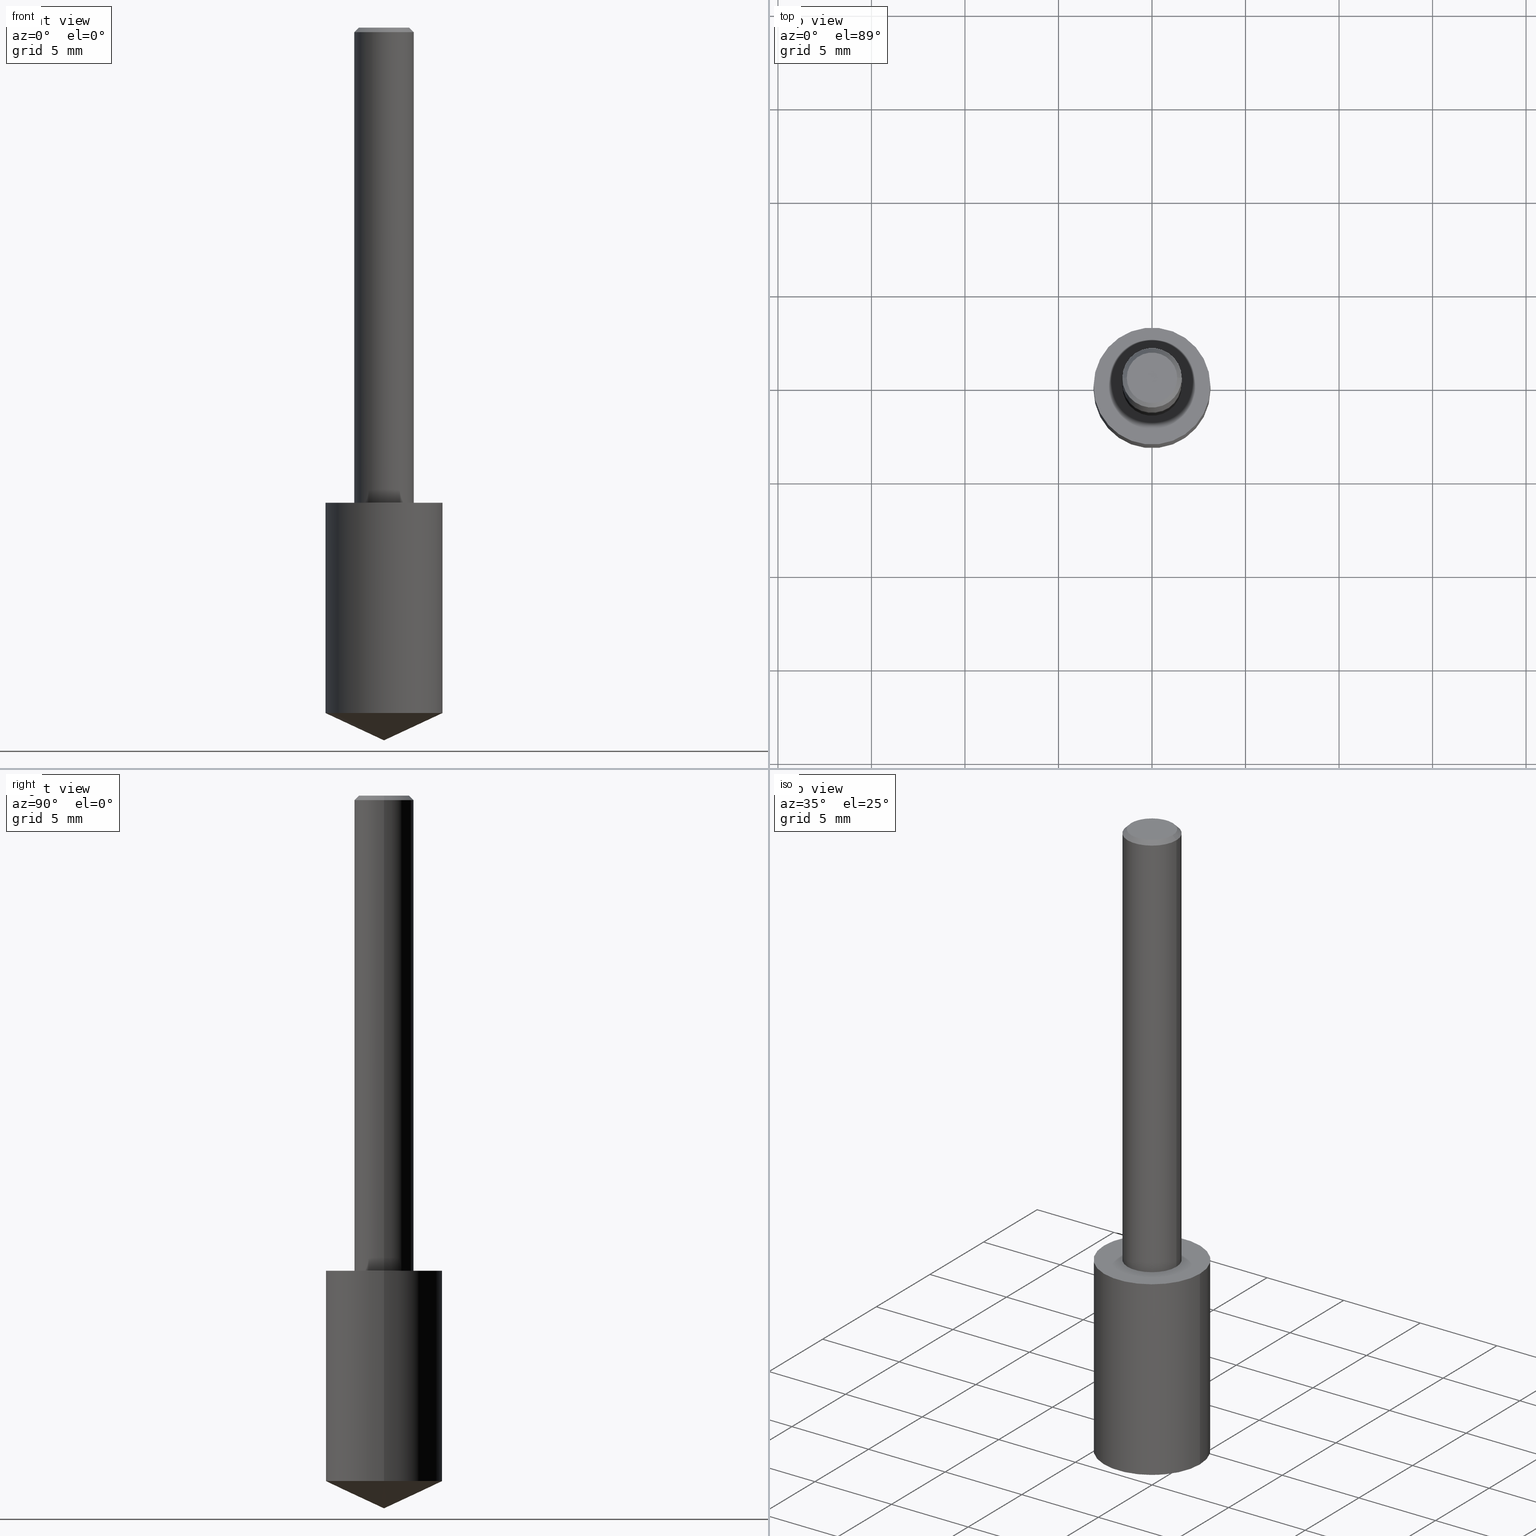
[diagram: canonical four-view strip — front | top / right | iso, engineering-drawing reading convention]
A machine part, canonical four-view strip (front | top / right | iso — engineering-drawing reading convention). The complete STEP part file that produces these views, byte-faithful:
ISO-10303-21;
HEADER;
FILE_DESCRIPTION (( 'STEP AP203' ),
    '1' );
FILE_NAME ('06171.STEP',
    '2024-04-30T18:32:50',
    ( '' ),
    ( '' ),
    'SwSTEP 2.0',
    'SolidWorks 2023',
    '' );
FILE_SCHEMA (( 'CONFIG_CONTROL_DESIGN' ));
ENDSEC;

DATA;
#1 = APPROVAL ( #323, 'UNSPECIFIED' ) ;
#2 = ORIENTED_EDGE ( 'NONE', *, *, #279, .F. ) ;
#3 = CARTESIAN_POINT ( 'NONE',  ( -9.261009624683002666E-28, 1.322226732217803884E-13, 37.87007874015748143 ) ) ;
#4 = CIRCLE ( 'NONE', #196, 0.05312499999999999861 ) ;
#5 = ORIENTED_EDGE ( 'NONE', *, *, #28, .F. ) ;
#6 = COORDINATED_UNIVERSAL_TIME_OFFSET ( 5, 0, .BEHIND. ) ;
#7 = ADVANCED_FACE ( 'NONE', ( #118 ), #89, .T. ) ;
#8 = DATE_AND_TIME ( #254, #154 ) ;
#9 = CARTESIAN_POINT ( 'NONE',  ( -7.487088864773345706E-50, 1.068957861474247695E-35, 3.061616997868395197E-21 ) ) ;
#10 = AXIS2_PLACEMENT_3D ( 'NONE', #170, #66, #91 ) ;
#11 = DIRECTION ( 'NONE',  ( -2.445468806185136597E-29, 3.491481338843145583E-15, 1.000000000000000000 ) ) ;
#12 = DATE_AND_TIME ( #191, #211 ) ;
#13 = DIRECTION ( 'NONE',  ( 1.000000000000000000, -6.982962677686263555E-15, 0.000000000000000000 ) ) ;
#14 = EDGE_CURVE ( 'NONE', #75, #244, #72, .T. ) ;
#15 = CARTESIAN_POINT ( 'NONE',  ( -3.743544432386672853E-50, 5.344789307371238476E-36, 1.530808498934197599E-21 ) ) ;
#16 = EDGE_CURVE ( 'NONE', #285, #137, #210, .T. ) ;
#17 = SECURITY_CLASSIFICATION ( '', '', #138 ) ;
#18 = LINE ( 'NONE', #176, #77 ) ;
#19 = CARTESIAN_POINT ( 'NONE',  ( 0.000000000000000000, 0.000000000000000000, 0.000000000000000000 ) ) ;
#20 = CARTESIAN_POINT ( 'NONE',  ( 3.668203209277704895E-29, -5.237222008264718177E-15, -1.500000000000000222 ) ) ;
#21 = LINE ( 'NONE', #228, #95 ) ;
#22 = CIRCLE ( 'NONE', #136, 0.1230500000000000066 ) ;
#23 = ORIENTED_EDGE ( 'NONE', *, *, #16, .T. ) ;
#24 = CC_DESIGN_APPROVAL ( #41, ( #79 ) ) ;
#25 = EDGE_LOOP ( 'NONE', ( #52, #54, #319 ) ) ;
#26 = CARTESIAN_POINT ( 'NONE',  ( -0.06250000000000012490, -1.318017778347335489E-15, -1.000000000000000222 ) ) ;
#27 = LINE ( 'NONE', #241, #48 ) ;
#28 = EDGE_CURVE ( 'NONE', #75, #137, #221, .T. ) ;
#29 =( NAMED_UNIT ( * ) SI_UNIT ( $, .STERADIAN. ) SOLID_ANGLE_UNIT ( ) );
#30 = ORIENTED_EDGE ( 'NONE', *, *, #279, .T. ) ;
#31 = DIRECTION ( 'NONE',  ( 1.000000000000000000, 0.000000000000000000, 0.000000000000000000 ) ) ;
#32 = EDGE_LOOP ( 'NONE', ( #297, #78, #188, #2 ) ) ;
#33 = VECTOR ( 'NONE', #256, 39.37007874015748143 ) ;
#34 = CALENDAR_DATE ( 2024, 30, 4 ) ;
#35 = ORIENTED_EDGE ( 'NONE', *, *, #238, .F. ) ;
#36 = APPROVAL_STATUS ( 'not_yet_approved' ) ;
#37 = DIRECTION ( 'NONE',  ( -2.445468806185136597E-29, 3.491481338843145583E-15, 1.000000000000000000 ) ) ;
#38 = LOCAL_TIME ( 14, 32, 50.00000000000000000, #55 ) ;
#39 = PERSON_AND_ORGANIZATION_ROLE ( 'design_supplier' ) ;
#40 = DIRECTION ( 'NONE',  ( 2.438088387897960049E-29, -3.491481338843145188E-15, -1.000000000000000000 ) ) ;
#41 = APPROVAL ( #36, 'UNSPECIFIED' ) ;
#42 = CARTESIAN_POINT ( 'NONE',  ( 0.1230500000000000066, -4.350734896332441588E-15, -1.000000000000000222 ) ) ;
#43 = DIRECTION ( 'NONE',  ( -2.445468806185136597E-29, 3.491481338843145583E-15, 1.000000000000000000 ) ) ;
#44 = VECTOR ( 'NONE', #84, 39.37007874015748143 ) ;
#45 = DIRECTION ( 'NONE',  ( -2.438088387897960049E-29, 3.491481338843145188E-15, 1.000000000000000000 ) ) ;
#46 = DIRECTION ( 'NONE',  ( 1.000000000000000000, -6.982962677686266711E-15, 0.000000000000000000 ) ) ;
#47 = EDGE_CURVE ( 'NONE', #130, #132, #192, .T. ) ;
#48 = VECTOR ( 'NONE', #209, 39.37007874015748143 ) ;
#49 = CARTESIAN_POINT ( 'NONE',  ( 3.527884269887395579E-29, -5.036883751187626177E-15, -1.442620842664027681 ) ) ;
#50 = FACE_OUTER_BOUND ( 'NONE', #247, .T. ) ;
#51 = AXIS2_PLACEMENT_3D ( 'NONE', #299, #224, #219 ) ;
#52 = ORIENTED_EDGE ( 'NONE', *, *, #216, .F. ) ;
#53 = ADVANCED_FACE ( 'NONE', ( #60 ), #147, .F. ) ;
#54 = ORIENTED_EDGE ( 'NONE', *, *, #282, .T. ) ;
#55 = COORDINATED_UNIVERSAL_TIME_OFFSET ( 5, 0, .BEHIND. ) ;
#56 = ORIENTED_EDGE ( 'NONE', *, *, #230, .F. ) ;
#57 = CONICAL_SURFACE ( 'NONE', #338, 84.42940631927417883, 1.134464013796315118 ) ;
#58 = DIRECTION ( 'NONE',  ( 1.000000000000000000, -6.982962677686266711E-15, 4.876176628004948512E-29 ) ) ;
#59 = PERSON_AND_ORGANIZATION ( #120, #330 ) ;
#60 = FACE_OUTER_BOUND ( 'NONE', #237, .T. ) ;
#61 = APPLICATION_CONTEXT ( 'configuration controlled 3d designs of mechanical parts and assemblies' ) ;
#62 = CARTESIAN_POINT ( 'NONE',  ( 0.05312499999999999861, -4.129888592719939842E-16, 3.061617000609493422E-21 ) ) ;
#63 = EDGE_CURVE ( 'NONE', #212, #103, #204, .T. ) ;
#64 = CIRCLE ( 'NONE', #197, 0.06250000000000012490 ) ;
#65 = APPROVAL_ROLE ( '' ) ;
#66 = DIRECTION ( 'NONE',  ( -2.445468806185136597E-29, 3.491481338843145583E-15, 1.000000000000000000 ) ) ;
#67 = EDGE_CURVE ( 'NONE', #163, #132, #276, .T. ) ;
#68 = AXIS2_PLACEMENT_3D ( 'NONE', #122, #151, #231 ) ;
#69 = CC_DESIGN_PERSON_AND_ORGANIZATION_ASSIGNMENT ( #146, #39, ( #218 ) ) ;
#70 = FACE_OUTER_BOUND ( 'NONE', #208, .T. ) ;
#71 = CARTESIAN_POINT ( 'NONE',  ( -0.06250000000000000000, -1.318017778347336672E-15, -0.009375000000000060368 ) ) ;
#72 = CIRCLE ( 'NONE', #322, 0.05312499999999999861 ) ;
#73 = DIRECTION ( 'NONE',  ( -2.445468806185136597E-29, 3.491481338843145583E-15, 1.000000000000000000 ) ) ;
#74 = PERSON_AND_ORGANIZATION ( #120, #330 ) ;
#75 = VERTEX_POINT ( 'NONE', #62 ) ;
#76 = ORIENTED_EDGE ( 'NONE', *, *, #128, .T. ) ;
#77 = VECTOR ( 'NONE', #178, 39.37007874015748143 ) ;
#78 = ORIENTED_EDGE ( 'NONE', *, *, #270, .T. ) ;
#79 = PRODUCT_DEFINITION ( 'UNKNOWN', '', #218, #314 ) ;
#80 = FACE_OUTER_BOUND ( 'NONE', #109, .T. ) ;
#81 = DIRECTION ( 'NONE',  ( 1.000000000000000000, -6.982962677686263555E-15, 0.000000000000000000 ) ) ;
#82 = ORIENTED_EDGE ( 'NONE', *, *, #63, .T. ) ;
#83 = SHAPE_DEFINITION_REPRESENTATION ( #259, #242 ) ;
#84 = DIRECTION ( 'NONE',  ( -2.445468806185136877E-29, 3.491481338843145188E-15, 1.000000000000000000 ) ) ;
#85 = CLOSED_SHELL ( 'NONE', ( #207, #227, #158, #248, #53 ) ) ;
#86 =( GEOMETRIC_REPRESENTATION_CONTEXT ( 3 ) GLOBAL_UNCERTAINTY_ASSIGNED_CONTEXT ( ( #159 ) ) GLOBAL_UNIT_ASSIGNED_CONTEXT ( ( #296, #160, #29 ) ) REPRESENTATION_CONTEXT ( 'NONE', 'WORKASPACE' ) );
#87 =( LENGTH_UNIT ( ) NAMED_UNIT ( * ) SI_UNIT ( $, .METRE. ) );
#88 = DATE_TIME_ROLE ( 'creation_date' ) ;
#89 = CYLINDRICAL_SURFACE ( 'NONE', #10, 0.06250000000000006939 ) ;
#90 = APPROVAL_STATUS ( 'not_yet_approved' ) ;
#91 = DIRECTION ( 'NONE',  ( 1.000000000000000000, -6.982962677686266711E-15, 4.876176775795935793E-29 ) ) ;
#92 = VECTOR ( 'NONE', #195, 39.37007874015748143 ) ;
#93 = DIRECTION ( 'NONE',  ( -2.445468806185136597E-29, 3.491481338843145583E-15, 1.000000000000000000 ) ) ;
#94 = APPROVAL ( #90, 'UNSPECIFIED' ) ;
#95 = VECTOR ( 'NONE', #199, 39.37007874015748143 ) ;
#96 = APPROVAL_PERSON_ORGANIZATION ( #74, #41, #250 ) ;
#97 = DIRECTION ( 'NONE',  ( 1.000000000000000000, -6.982962677686266711E-15, 0.000000000000000000 ) ) ;
#98 = CARTESIAN_POINT ( 'NONE',  ( 3.668203209277704895E-29, -5.237222008264718177E-15, -1.500000000000000222 ) ) ;
#99 = DIMENSIONAL_EXPONENTS ( 1.000000000000000000, 0.000000000000000000, 0.000000000000000000, 0.000000000000000000, 0.000000000000000000, 0.000000000000000000, 0.000000000000000000 ) ;
#100 = AXIS2_PLACEMENT_3D ( 'NONE', #284, #294, #185 ) ;
#101 = DIRECTION ( 'NONE',  ( -0.9063077870366502697, 7.915267918739016209E-15, 0.4226182617406986641 ) ) ;
#102 = PRODUCT ( '06171', '06171', '', ( #135 ) ) ;
#103 = VERTEX_POINT ( 'NONE', #275 ) ;
#104 = DIRECTION ( 'NONE',  ( -2.445468806185136597E-29, 3.491481338843145583E-15, 1.000000000000000000 ) ) ;
#105 = ADVANCED_FACE ( 'NONE', ( #70 ), #304, .F. ) ;
#106 = ORIENTED_EDGE ( 'NONE', *, *, #47, .F. ) ;
#107 = AXIS2_PLACEMENT_3D ( 'NONE', #3, #110, #286 ) ;
#108 = APPROVAL_PERSON_ORGANIZATION ( #222, #1, #194 ) ;
#109 = EDGE_LOOP ( 'NONE', ( #112, #165, #268, #157 ) ) ;
#110 = DIRECTION ( 'NONE',  ( -2.445468806185136597E-29, 3.491481338843145583E-15, 1.000000000000000000 ) ) ;
#111 = COORDINATED_UNIVERSAL_TIME_OFFSET ( 5, 0, .BEHIND. ) ;
#112 = ORIENTED_EDGE ( 'NONE', *, *, #128, .F. ) ;
#113 = COORDINATED_UNIVERSAL_TIME_OFFSET ( 5, 0, .BEHIND. ) ;
#114 = DIRECTION ( 'NONE',  ( 1.000000000000000000, -6.982962677686263555E-15, 0.000000000000000000 ) ) ;
#115 = DIRECTION ( 'NONE',  ( 1.000000000000000000, -6.982962677686268288E-15, 0.000000000000000000 ) ) ;
#116 = APPROVAL_DATE_TIME ( #12, #41 ) ;
#117 = APPROVAL_DATE_TIME ( #8, #94 ) ;
#118 = FACE_OUTER_BOUND ( 'NONE', #32, .T. ) ;
#119 = AXIS2_PLACEMENT_3D ( 'NONE', #15, #177, #260 ) ;
#120 = PERSON ( 'UNSPECIFIED', 'UNSPECIFIED', 'UNSPECIFIED', ('UNSPECIFIED'), ('UNSPECIFIED'), ('UNSPECIFIED') ) ;
#121 = CARTESIAN_POINT ( 'NONE',  ( -0.1230500000000000066, -2.617158502490343145E-15, -1.000000000000000222 ) ) ;
#122 = CARTESIAN_POINT ( 'NONE',  ( 2.292627005798580186E-31, -3.273263755165470184E-17, -0.009375000000000060368 ) ) ;
#123 = AXIS2_PLACEMENT_3D ( 'NONE', #152, #125, #97 ) ;
#124 = CARTESIAN_POINT ( 'NONE',  ( -9.261009624683002666E-28, 1.322226732217803884E-13, 37.87007874015748143 ) ) ;
#125 = DIRECTION ( 'NONE',  ( -2.445468806185136597E-29, 3.491481338843145583E-15, 1.000000000000000000 ) ) ;
#126 = DIRECTION ( 'NONE',  ( 1.000000000000000000, -6.982962677686266711E-15, 4.876176775795935793E-29 ) ) ;
#127 = DIRECTION ( 'NONE',  ( 0.000000000000000000, 0.000000000000000000, 1.000000000000000000 ) ) ;
#128 = EDGE_CURVE ( 'NONE', #162, #163, #148, .T. ) ;
#129 = CLOSED_SHELL ( 'NONE', ( #171, #7, #105, #145, #265, #168 ) ) ;
#130 = VERTEX_POINT ( 'NONE', #226 ) ;
#131 = CARTESIAN_POINT ( 'NONE',  ( 2.445468806185137438E-29, -3.491481338843146371E-15, -1.000000000000000222 ) ) ;
#132 = VERTEX_POINT ( 'NONE', #155 ) ;
#133 = DIRECTION ( 'NONE',  ( 1.000000000000000000, -6.982962677686264344E-15, 0.000000000000000000 ) ) ;
#134 = ORIENTED_EDGE ( 'NONE', *, *, #14, .F. ) ;
#135 = MECHANICAL_CONTEXT ( 'NONE', #61, 'mechanical' ) ;
#136 = AXIS2_PLACEMENT_3D ( 'NONE', #232, #179, #13 ) ;
#137 = VERTEX_POINT ( 'NONE', #257 ) ;
#138 = SECURITY_CLASSIFICATION_LEVEL ( 'unclassified' ) ;
#139 = EDGE_LOOP ( 'NONE', ( #134, #328, #240, #245 ) ) ;
#140 = DIRECTION ( 'NONE',  ( -2.445468806185136597E-29, 3.491481338843145583E-15, 1.000000000000000000 ) ) ;
#141 = PERSON_AND_ORGANIZATION_ROLE ( 'classification_officer' ) ;
#142 = CARTESIAN_POINT ( 'NONE',  ( 2.445468806185136877E-29, -3.491481338843145977E-15, -1.000000000000000222 ) ) ;
#143 = CONICAL_SURFACE ( 'NONE', #68, 0.06250000000000000000, 0.7853981633974452814 ) ;
#144 = CALENDAR_DATE ( 2024, 30, 4 ) ;
#145 = ADVANCED_FACE ( 'NONE', ( #263 ), #332, .T. ) ;
#146 = PERSON_AND_ORGANIZATION ( #120, #330 ) ;
#147 = PLANE ( 'NONE',  #225 ) ;
#148 = LINE ( 'NONE', #121, #33 ) ;
#149 = PLANE ( 'NONE',  #119 ) ;
#150 = EDGE_CURVE ( 'NONE', #162, #130, #22, .T. ) ;
#151 = DIRECTION ( 'NONE',  ( 2.445468806185136597E-29, -3.491481338843145583E-15, -1.000000000000000000 ) ) ;
#152 = CARTESIAN_POINT ( 'NONE',  ( 2.292627005798580186E-31, -3.273263755165470184E-17, -0.009375000000000060368 ) ) ;
#153 = AXIS2_PLACEMENT_3D ( 'NONE', #288, #189, #161 ) ;
#154 = LOCAL_TIME ( 14, 32, 50.00000000000000000, #217 ) ;
#155 = CARTESIAN_POINT ( 'NONE',  ( 0.1230500000000000066, -4.350734896332440799E-15, -1.000000000000000222 ) ) ;
#156 = LINE ( 'NONE', #20, #309 ) ;
#157 = ORIENTED_EDGE ( 'NONE', *, *, #67, .F. ) ;
#158 = ADVANCED_FACE ( 'NONE', ( #277 ), #57, .T. ) ;
#159 = UNCERTAINTY_MEASURE_WITH_UNIT (LENGTH_MEASURE( 1.000000000000000082E-05 ), #296, 'distance_accuracy_value', 'NONE');
#160 =( NAMED_UNIT ( * ) PLANE_ANGLE_UNIT ( ) SI_UNIT ( $, .RADIAN. ) );
#161 = DIRECTION ( 'NONE',  ( -1.000000000000000000, 6.982962677686266711E-15, 0.000000000000000000 ) ) ;
#162 = VERTEX_POINT ( 'NONE', #198 ) ;
#163 = VERTEX_POINT ( 'NONE', #278 ) ;
#164 = CIRCLE ( 'NONE', #100, 0.1230500000000000066 ) ;
#165 = ORIENTED_EDGE ( 'NONE', *, *, #150, .T. ) ;
#166 = PERSON_AND_ORGANIZATION_ROLE ( 'creator' ) ;
#167 = DIRECTION ( 'NONE',  ( -2.445468806185136597E-29, 3.491481338843145583E-15, 1.000000000000000000 ) ) ;
#168 = ADVANCED_FACE ( 'NONE', ( #308 ), #149, .F. ) ;
#169 = PERSON_AND_ORGANIZATION ( #120, #330 ) ;
#170 = CARTESIAN_POINT ( 'NONE',  ( 0.000000000000000000, 0.000000000000000000, 0.000000000000000000 ) ) ;
#171 = ADVANCED_FACE ( 'NONE', ( #336 ), #143, .T. ) ;
#172 = DATE_AND_TIME ( #321, #229 ) ;
#173 = CARTESIAN_POINT ( 'NONE',  ( 2.445468806185137438E-29, -3.491481338843146371E-15, -1.000000000000000222 ) ) ;
#174 = AXIS2_PLACEMENT_3D ( 'NONE', #142, #11, #114 ) ;
#175 = CYLINDRICAL_SURFACE ( 'NONE', #287, 0.1230500000000000066 ) ;
#176 = CARTESIAN_POINT ( 'NONE',  ( -0.06250000000000000000, 4.037025298037369984E-16, -0.009375000000000060368 ) ) ;
#177 = DIRECTION ( 'NONE',  ( 2.438088387897960049E-29, -3.491481338843145188E-15, -1.000000000000000000 ) ) ;
#178 = DIRECTION ( 'NONE',  ( -0.7071067811865453523, 2.468850131082234184E-15, -0.7071067811865496822 ) ) ;
#179 = DIRECTION ( 'NONE',  ( -2.445468806185136597E-29, 3.491481338843145583E-15, 1.000000000000000000 ) ) ;
#180 = ORIENTED_EDGE ( 'NONE', *, *, #67, .T. ) ;
#181 = ORIENTED_EDGE ( 'NONE', *, *, #300, .T. ) ;
#182 = VECTOR ( 'NONE', #307, 39.37007874015748143 ) ;
#183 = CC_DESIGN_APPROVAL ( #1, ( #17 ) ) ;
#184 = ORIENTED_EDGE ( 'NONE', *, *, #292, .T. ) ;
#185 = DIRECTION ( 'NONE',  ( 1.000000000000000000, -6.982962677686263555E-15, 0.000000000000000000 ) ) ;
#186 = EDGE_LOOP ( 'NONE', ( #213, #293, #56 ) ) ;
#187 = LENGTH_MEASURE_WITH_UNIT ( LENGTH_MEASURE( 0.02539999999999999897 ), #87 );
#188 = ORIENTED_EDGE ( 'NONE', *, *, #295, .F. ) ;
#189 = DIRECTION ( 'NONE',  ( 2.445468806185136597E-29, -3.491481338843145583E-15, -1.000000000000000000 ) ) ;
#190 = AXIS2_PLACEMENT_3D ( 'NONE', #49, #104, #81 ) ;
#191 = CALENDAR_DATE ( 2024, 30, 4 ) ;
#192 = LINE ( 'NONE', #42, #44 ) ;
#193 = VERTEX_POINT ( 'NONE', #98 ) ;
#194 = APPROVAL_ROLE ( '' ) ;
#195 = DIRECTION ( 'NONE',  ( 0.7071067811865453523, -7.319954787623248157E-15, -0.7071067811865496822 ) ) ;
#196 = AXIS2_PLACEMENT_3D ( 'NONE', #335, #201, #337 ) ;
#197 = AXIS2_PLACEMENT_3D ( 'NONE', #131, #264, #133 ) ;
#198 = CARTESIAN_POINT ( 'NONE',  ( -0.1230500000000000344, -4.162560914834822950E-15, -1.442620842664027681 ) ) ;
#199 = DIRECTION ( 'NONE',  ( -2.445468806185136877E-29, 3.491481338843145188E-15, 1.000000000000000000 ) ) ;
#200 = CARTESIAN_POINT ( 'NONE',  ( 2.445468806185137438E-29, -3.491481338843146371E-15, -1.000000000000000222 ) ) ;
#201 = DIRECTION ( 'NONE',  ( -2.445468806185136597E-29, 3.491481338843145583E-15, 1.000000000000000000 ) ) ;
#202 = FACE_OUTER_BOUND ( 'NONE', #313, .T. ) ;
#203 = LINE ( 'NONE', #233, #182 ) ;
#204 = CIRCLE ( 'NONE', #269, 0.06250000000000012490 ) ;
#205 = APPLICATION_PROTOCOL_DEFINITION ( 'international standard', 'config_control_design', 1994, #272 ) ;
#206 = ORIENTED_EDGE ( 'NONE', *, *, #220, .T. ) ;
#207 = ADVANCED_FACE ( 'NONE', ( #202 ), #310, .T. ) ;
#208 = EDGE_LOOP ( 'NONE', ( #35, #315 ) ) ;
#209 = DIRECTION ( 'NONE',  ( -2.445468806185136877E-29, 3.491481338843145188E-15, 1.000000000000000000 ) ) ;
#210 = CIRCLE ( 'NONE', #51, 0.06250000000000000000 ) ;
#211 = LOCAL_TIME ( 14, 32, 50.00000000000000000, #111 ) ;
#212 = VERTEX_POINT ( 'NONE', #26 ) ;
#213 = ORIENTED_EDGE ( 'NONE', *, *, #282, .F. ) ;
#214 = DATE_TIME_ROLE ( 'classification_date' ) ;
#215 = ORIENTED_EDGE ( 'NONE', *, *, #14, .T. ) ;
#216 = EDGE_CURVE ( 'NONE', #193, #162, #156, .T. ) ;
#217 = COORDINATED_UNIVERSAL_TIME_OFFSET ( 5, 0, .BEHIND. ) ;
#218 = PRODUCT_DEFINITION_FORMATION_WITH_SPECIFIED_SOURCE ( 'ANY', '', #102, .NOT_KNOWN. ) ;
#219 = DIRECTION ( 'NONE',  ( 1.000000000000000000, -6.982962677686266711E-15, 0.000000000000000000 ) ) ;
#220 = EDGE_CURVE ( 'NONE', #132, #163, #164, .T. ) ;
#221 = LINE ( 'NONE', #301, #92 ) ;
#222 = PERSON_AND_ORGANIZATION ( #120, #330 ) ;
#223 = CC_DESIGN_DATE_AND_TIME_ASSIGNMENT ( #329, #214, ( #17 ) ) ;
#224 = DIRECTION ( 'NONE',  ( -2.445468806185136597E-29, 3.491481338843145583E-15, 1.000000000000000000 ) ) ;
#225 = AXIS2_PLACEMENT_3D ( 'NONE', #303, #40, #326 ) ;
#226 = CARTESIAN_POINT ( 'NONE',  ( 0.1230500000000000344, -5.896137308676920999E-15, -1.442620842664027681 ) ) ;
#227 = ADVANCED_FACE ( 'NONE', ( #281 ), #249, .T. ) ;
#228 = CARTESIAN_POINT ( 'NONE',  ( 0.06250000000000006939, -4.364351673553921624E-16, 3.047610484872463374E-30 ) ) ;
#229 = LOCAL_TIME ( 14, 32, 50.00000000000000000, #6 ) ;
#230 = EDGE_CURVE ( 'NONE', #130, #162, #298, .T. ) ;
#231 = DIRECTION ( 'NONE',  ( -1.000000000000000000, 6.982962677686266711E-15, 0.000000000000000000 ) ) ;
#232 = CARTESIAN_POINT ( 'NONE',  ( 3.527884269887395579E-29, -5.036883751187626177E-15, -1.442620842664027681 ) ) ;
#233 = CARTESIAN_POINT ( 'NONE',  ( 3.668203209277704895E-29, -5.237222008264718177E-15, -1.500000000000000222 ) ) ;
#234 = PERSON_AND_ORGANIZATION_ROLE ( 'design_owner' ) ;
#235 = MANIFOLD_SOLID_BREP ( 'Body-Move/Copy2[1]', #85 ) ;
#236 = AXIS2_PLACEMENT_3D ( 'NONE', #200, #45, #306 ) ;
#237 = EDGE_LOOP ( 'NONE', ( #206, #180 ) ) ;
#238 = EDGE_CURVE ( 'NONE', #103, #212, #64, .T. ) ;
#239 = MANIFOLD_SOLID_BREP ( 'Body-Move/Copy2[2]', #129 ) ;
#240 = ORIENTED_EDGE ( 'NONE', *, *, #295, .T. ) ;
#241 = CARTESIAN_POINT ( 'NONE',  ( -0.06250000000000006939, 4.440892098500631092E-16, -3.074334431409319267E-30 ) ) ;
#242 = ADVANCED_BREP_SHAPE_REPRESENTATION ( '06171', ( #235, #239, #251 ), #86 ) ;
#243 = CC_DESIGN_DATE_AND_TIME_ASSIGNMENT ( #327, #88, ( #79 ) ) ;
#244 = VERTEX_POINT ( 'NONE', #316 ) ;
#245 = ORIENTED_EDGE ( 'NONE', *, *, #292, .F. ) ;
#246 = PERSON_AND_ORGANIZATION ( #120, #330 ) ;
#247 = EDGE_LOOP ( 'NONE', ( #5, #283, #184, #23 ) ) ;
#248 = ADVANCED_FACE ( 'NONE', ( #80 ), #175, .T. ) ;
#249 = CONICAL_SURFACE ( 'NONE', #107, 84.42940631927417883, 1.134464013796315118 ) ;
#250 = APPROVAL_ROLE ( '' ) ;
#251 = AXIS2_PLACEMENT_3D ( 'NONE', #266, #127, #31 ) ;
#252 = DIRECTION ( 'NONE',  ( 1.000000000000000000, -6.982962677686264344E-15, 0.000000000000000000 ) ) ;
#253 = CC_DESIGN_PERSON_AND_ORGANIZATION_ASSIGNMENT ( #246, #141, ( #17 ) ) ;
#254 = CALENDAR_DATE ( 2024, 30, 4 ) ;
#255 = AXIS2_PLACEMENT_3D ( 'NONE', #334, #73, #320 ) ;
#256 = DIRECTION ( 'NONE',  ( -2.445468806185136877E-29, 3.491481338843145188E-15, 1.000000000000000000 ) ) ;
#257 = CARTESIAN_POINT ( 'NONE',  ( 0.06250000000000000000, -4.691678049070463404E-16, -0.009375000000000060368 ) ) ;
#258 = PRODUCT_RELATED_PRODUCT_CATEGORY ( 'detail', '', ( #102 ) ) ;
#259 = PRODUCT_DEFINITION_SHAPE ( 'NONE', 'NONE',  #79 ) ;
#260 = DIRECTION ( 'NONE',  ( -1.000000000000000000, 6.982962677686265922E-15, -4.876176775795935793E-29 ) ) ;
#261 = CC_DESIGN_APPROVAL ( #94, ( #218 ) ) ;
#262 = CC_DESIGN_PERSON_AND_ORGANIZATION_ASSIGNMENT ( #302, #274, ( #218 ) ) ;
#263 = FACE_OUTER_BOUND ( 'NONE', #312, .T. ) ;
#264 = DIRECTION ( 'NONE',  ( -2.445468806185136597E-29, 3.491481338843145583E-15, 1.000000000000000000 ) ) ;
#265 = ADVANCED_FACE ( 'NONE', ( #50 ), #333, .T. ) ;
#266 = CARTESIAN_POINT ( 'NONE',  ( 0.000000000000000000, 0.000000000000000000, 0.000000000000000000 ) ) ;
#267 = EDGE_LOOP ( 'NONE', ( #181, #215 ) ) ;
#268 = ORIENTED_EDGE ( 'NONE', *, *, #47, .T. ) ;
#269 = AXIS2_PLACEMENT_3D ( 'NONE', #331, #37, #252 ) ;
#270 = EDGE_CURVE ( 'NONE', #212, #285, #27, .T. ) ;
#271 = ORIENTED_EDGE ( 'NONE', *, *, #270, .F. ) ;
#272 = APPLICATION_CONTEXT ( 'configuration controlled 3d designs of mechanical parts and assemblies' ) ;
#273 = CIRCLE ( 'NONE', #123, 0.06250000000000000000 ) ;
#274 = PERSON_AND_ORGANIZATION_ROLE ( 'creator' ) ;
#275 = CARTESIAN_POINT ( 'NONE',  ( 0.06250000000000012490, -3.927916506198539224E-15, -1.000000000000000222 ) ) ;
#276 = CIRCLE ( 'NONE', #174, 0.1230500000000000066 ) ;
#277 = FACE_OUTER_BOUND ( 'NONE', #25, .T. ) ;
#278 = CARTESIAN_POINT ( 'NONE',  ( -0.1230500000000000066, -3.389859708662582850E-15, -1.000000000000000222 ) ) ;
#279 = EDGE_CURVE ( 'NONE', #103, #137, #21, .T. ) ;
#280 = CC_DESIGN_SECURITY_CLASSIFICATION ( #17, ( #218 ) ) ;
#281 = FACE_OUTER_BOUND ( 'NONE', #186, .T. ) ;
#282 = EDGE_CURVE ( 'NONE', #193, #130, #203, .T. ) ;
#283 = ORIENTED_EDGE ( 'NONE', *, *, #300, .F. ) ;
#284 = CARTESIAN_POINT ( 'NONE',  ( 2.445468806185136877E-29, -3.491481338843145977E-15, -1.000000000000000222 ) ) ;
#285 = VERTEX_POINT ( 'NONE', #71 ) ;
#286 = DIRECTION ( 'NONE',  ( 1.000000000000000000, -6.982962677686266711E-15, 0.000000000000000000 ) ) ;
#287 = AXIS2_PLACEMENT_3D ( 'NONE', #173, #140, #115 ) ;
#288 = CARTESIAN_POINT ( 'NONE',  ( 2.292627005798580186E-31, -3.273263755165470184E-17, -0.009375000000000060368 ) ) ;
#289 = LOCAL_TIME ( 14, 32, 50.00000000000000000, #113 ) ;
#290 = APPLICATION_PROTOCOL_DEFINITION ( 'international standard', 'config_control_design', 1994, #61 ) ;
#291 = ORIENTED_EDGE ( 'NONE', *, *, #220, .F. ) ;
#292 = EDGE_CURVE ( 'NONE', #244, #285, #18, .T. ) ;
#293 = ORIENTED_EDGE ( 'NONE', *, *, #216, .T. ) ;
#294 = DIRECTION ( 'NONE',  ( -2.445468806185136597E-29, 3.491481338843145583E-15, 1.000000000000000000 ) ) ;
#295 = EDGE_CURVE ( 'NONE', #137, #285, #273, .T. ) ;
#296 =( CONVERSION_BASED_UNIT ( 'INCH', #187 ) LENGTH_UNIT ( ) NAMED_UNIT ( #99 ) );
#297 = ORIENTED_EDGE ( 'NONE', *, *, #238, .T. ) ;
#298 = CIRCLE ( 'NONE', #190, 0.1230500000000000066 ) ;
#299 = CARTESIAN_POINT ( 'NONE',  ( 2.292627005798580186E-31, -3.273263755165470184E-17, -0.009375000000000060368 ) ) ;
#300 = EDGE_CURVE ( 'NONE', #244, #75, #4, .T. ) ;
#301 = CARTESIAN_POINT ( 'NONE',  ( 0.06250000000000000000, -4.615137624123753937E-16, -0.009375000000000060368 ) ) ;
#302 = PERSON_AND_ORGANIZATION ( #120, #330 ) ;
#303 = CARTESIAN_POINT ( 'NONE',  ( 3.220616818410641601E-29, -2.381425266651246989E-15, -1.000000000000000222 ) ) ;
#304 = PLANE ( 'NONE',  #236 ) ;
#305 = APPROVAL_PERSON_ORGANIZATION ( #169, #94, #65 ) ;
#306 = DIRECTION ( 'NONE',  ( 1.000000000000000000, -6.982962677686265922E-15, 4.876176775795935793E-29 ) ) ;
#307 = DIRECTION ( 'NONE',  ( 0.9063077870366502697, -4.853149677051385890E-15, 0.4226182617406986641 ) ) ;
#308 = FACE_OUTER_BOUND ( 'NONE', #267, .T. ) ;
#309 = VECTOR ( 'NONE', #101, 39.37007874015748143 ) ;
#310 = CYLINDRICAL_SURFACE ( 'NONE', #255, 0.1230500000000000066 ) ;
#311 = PERSON_AND_ORGANIZATION ( #120, #330 ) ;
#312 = EDGE_LOOP ( 'NONE', ( #271, #82, #30, #339 ) ) ;
#313 = EDGE_LOOP ( 'NONE', ( #340, #76, #291, #106 ) ) ;
#314 = DESIGN_CONTEXT ( 'detailed design', #272, 'design' ) ;
#315 = ORIENTED_EDGE ( 'NONE', *, *, #63, .F. ) ;
#316 = CARTESIAN_POINT ( 'NONE',  ( -0.05312499999999999861, 3.873362110279099094E-16, 3.061616995216862494E-21 ) ) ;
#317 = AXIS2_PLACEMENT_3D ( 'NONE', #19, #93, #126 ) ;
#318 = CC_DESIGN_PERSON_AND_ORGANIZATION_ASSIGNMENT ( #59, #166, ( #79 ) ) ;
#319 = ORIENTED_EDGE ( 'NONE', *, *, #150, .F. ) ;
#320 = DIRECTION ( 'NONE',  ( 1.000000000000000000, -6.982962677686268288E-15, 0.000000000000000000 ) ) ;
#321 = CALENDAR_DATE ( 2024, 30, 4 ) ;
#322 = AXIS2_PLACEMENT_3D ( 'NONE', #9, #167, #58 ) ;
#323 = APPROVAL_STATUS ( 'not_yet_approved' ) ;
#324 = CC_DESIGN_PERSON_AND_ORGANIZATION_ASSIGNMENT ( #311, #234, ( #102 ) ) ;
#325 = APPROVAL_DATE_TIME ( #172, #1 ) ;
#326 = DIRECTION ( 'NONE',  ( -1.000000000000000000, 6.982962677686265922E-15, -4.876176775795935793E-29 ) ) ;
#327 = DATE_AND_TIME ( #34, #38 ) ;
#328 = ORIENTED_EDGE ( 'NONE', *, *, #28, .T. ) ;
#329 = DATE_AND_TIME ( #144, #289 ) ;
#330 = ORGANIZATION ( 'UNSPECIFIED', 'UNSPECIFIED', '' ) ;
#331 = CARTESIAN_POINT ( 'NONE',  ( 2.445468806185137438E-29, -3.491481338843146371E-15, -1.000000000000000222 ) ) ;
#332 = CYLINDRICAL_SURFACE ( 'NONE', #317, 0.06250000000000006939 ) ;
#333 = CONICAL_SURFACE ( 'NONE', #153, 0.06250000000000000000, 0.7853981633974452814 ) ;
#334 = CARTESIAN_POINT ( 'NONE',  ( 2.445468806185137438E-29, -3.491481338843146371E-15, -1.000000000000000222 ) ) ;
#335 = CARTESIAN_POINT ( 'NONE',  ( -7.487088864773345706E-50, 1.068957861474247695E-35, 3.061616997868395197E-21 ) ) ;
#336 = FACE_OUTER_BOUND ( 'NONE', #139, .T. ) ;
#337 = DIRECTION ( 'NONE',  ( 1.000000000000000000, -6.982962677686266711E-15, 4.876176628004948512E-29 ) ) ;
#338 = AXIS2_PLACEMENT_3D ( 'NONE', #124, #43, #46 ) ;
#339 = ORIENTED_EDGE ( 'NONE', *, *, #16, .F. ) ;
#340 = ORIENTED_EDGE ( 'NONE', *, *, #230, .T. ) ;
ENDSEC;
END-ISO-10303-21;
